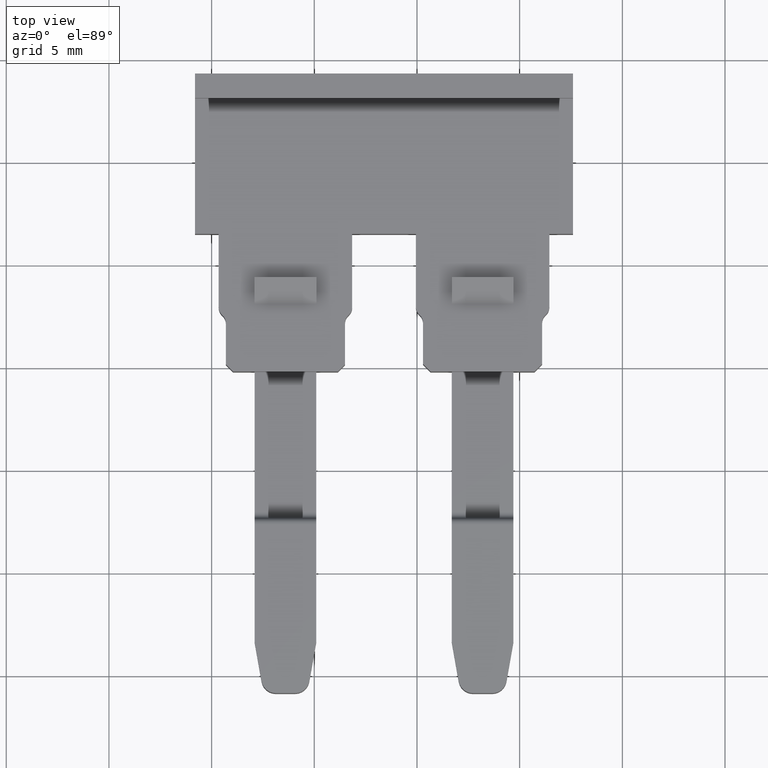
[diagram: clean part render]
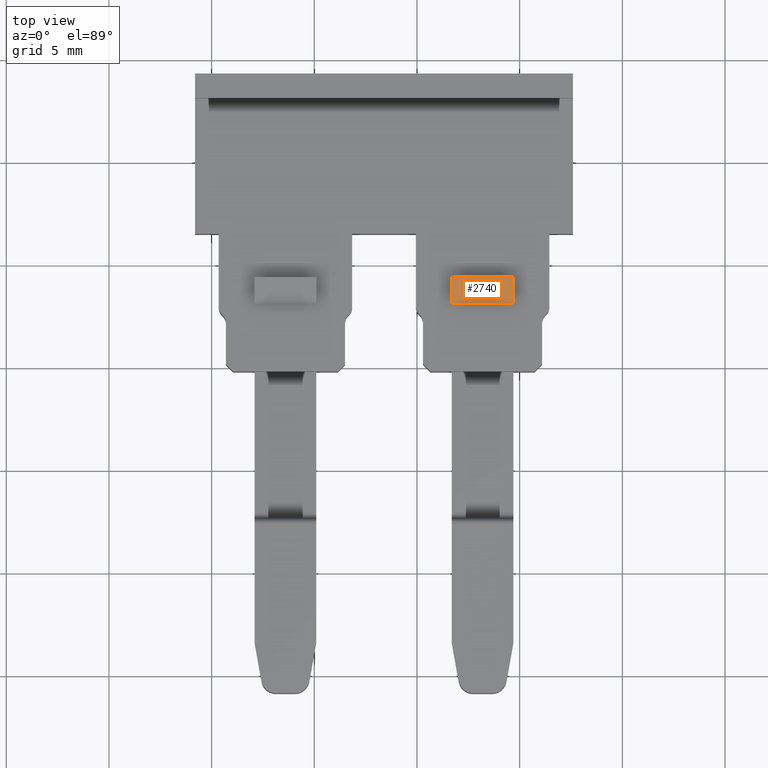
[diagram: same view with one face highlighted and labeled with its STEP entity id]
A machine part, top view. The second image highlights one B-rep face of the part: STEP entity #2740.
In plain terms, the highlighted planar face has unit normal (0, -0.2941, 0.9558).
Its self-contained STEP definition (entity closure, byte-faithful):
#45 = VECTOR ( 'NONE', #1207, 1000.000000000000000 ) ;
#158 = VECTOR ( 'NONE', #1332, 1000.000000000000000 ) ;
#187 = VECTOR ( 'NONE', #434, 1000.000000000000000 ) ;
#216 = VECTOR ( 'NONE', #1425, 1000.000000000000000 ) ;
#260 = AXIS2_PLACEMENT_3D ( 'NONE', #616, #584, #595 ) ;
#434 = DIRECTION ( 'NONE',  ( 1.000000000000000000, 0.0000000000000000000, 0.0000000000000000000 ) ) ;
#456 = LINE ( 'NONE', #461, #187 ) ;
#461 = CARTESIAN_POINT ( 'NONE',  ( 1151.694467917465500, 664.3878760720547200, 3.400000000000000400 ) ) ;
#584 = DIRECTION ( 'NONE',  ( 0.0000000000000000000, -0.2940858488375298600, 0.9557790087219479900 ) ) ;
#589 = PLANE ( 'NONE',  #260 ) ;
#595 = DIRECTION ( 'NONE',  ( 0.0000000000000000000, -0.9557790087219479900, -0.2940858488375298600 ) ) ;
#600 = FACE_OUTER_BOUND ( 'NONE', #1655, .T. ) ;
#616 = CARTESIAN_POINT ( 'NONE',  ( 1151.694467917465500, 664.3878760720547200, 3.400000000000000400 ) ) ;
#995 = CARTESIAN_POINT ( 'NONE',  ( 1151.694467917465500, 664.3878760720547200, 3.400000000000000400 ) ) ;
#1004 = CARTESIAN_POINT ( 'NONE',  ( 1154.694467917465300, 664.3878760720547200, 3.400000000000000400 ) ) ;
#1159 = CARTESIAN_POINT ( 'NONE',  ( 1151.694467917465500, 663.0878760720547700, 3.000000000000000000 ) ) ;
#1181 = LINE ( 'NONE', #1159, #45 ) ;
#1207 = DIRECTION ( 'NONE',  ( 1.000000000000000000, 0.0000000000000000000, 0.0000000000000000000 ) ) ;
#1332 = DIRECTION ( 'NONE',  ( 0.0000000000000000000, -0.9557790087219479900, -0.2940858488375298600 ) ) ;
#1342 = LINE ( 'NONE', #1364, #158 ) ;
#1364 = CARTESIAN_POINT ( 'NONE',  ( 1151.694467917465500, 664.3878760720547200, 3.400000000000000400 ) ) ;
#1424 = CARTESIAN_POINT ( 'NONE',  ( 1154.694467917465300, 664.3878760720547200, 3.400000000000000400 ) ) ;
#1425 = DIRECTION ( 'NONE',  ( 0.0000000000000000000, -0.9557790087219479900, -0.2940858488375298600 ) ) ;
#1452 = LINE ( 'NONE', #1424, #216 ) ;
#1655 = EDGE_LOOP ( 'NONE', ( #2309, #2330, #2231, #2318 ) ) ;
#1783 = VERTEX_POINT ( 'NONE', #2445 ) ;
#1815 = VERTEX_POINT ( 'NONE', #2432 ) ;
#1860 = VERTEX_POINT ( 'NONE', #1004 ) ;
#1863 = VERTEX_POINT ( 'NONE', #995 ) ;
#2231 = ORIENTED_EDGE ( 'NONE', *, *, #2652, .T. ) ;
#2309 = ORIENTED_EDGE ( 'NONE', *, *, #2679, .F. ) ;
#2318 = ORIENTED_EDGE ( 'NONE', *, *, #2603, .T. ) ;
#2330 = ORIENTED_EDGE ( 'NONE', *, *, #2700, .F. ) ;
#2432 = CARTESIAN_POINT ( 'NONE',  ( 1154.694467917465300, 663.0878760720547700, 3.000000000000000000 ) ) ;
#2445 = CARTESIAN_POINT ( 'NONE',  ( 1151.694467917465500, 663.0878760720547700, 3.000000000000000000 ) ) ;
#2603 = EDGE_CURVE ( 'NONE', #1783, #1815, #1181, .T. ) ;
#2652 = EDGE_CURVE ( 'NONE', #1863, #1783, #1342, .T. ) ;
#2679 = EDGE_CURVE ( 'NONE', #1860, #1815, #1452, .T. ) ;
#2700 = EDGE_CURVE ( 'NONE', #1863, #1860, #456, .T. ) ;
#2740 = ADVANCED_FACE ( 'NONE', ( #600 ), #589, .T. ) ;